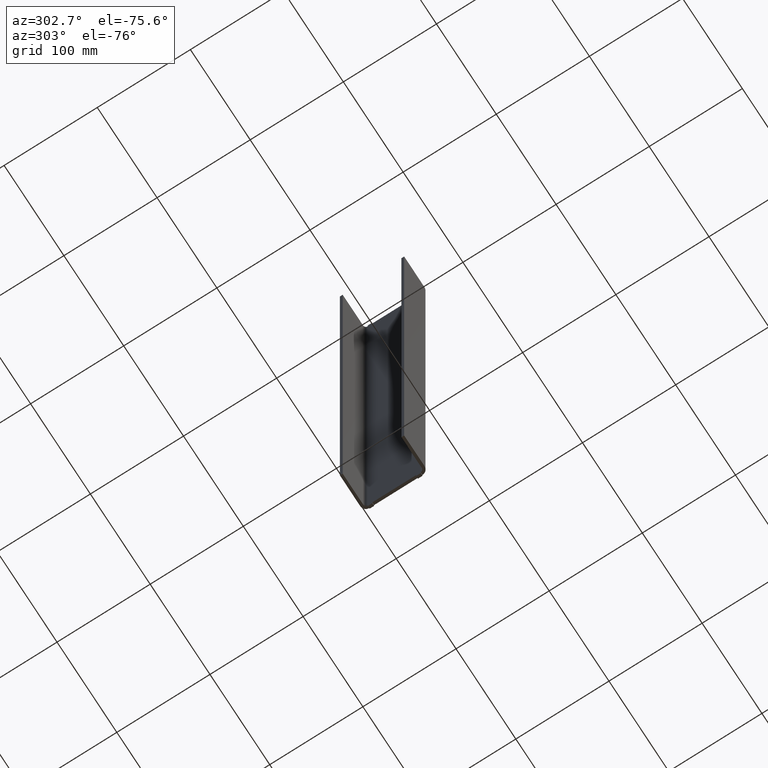
[diagram: clean part render]
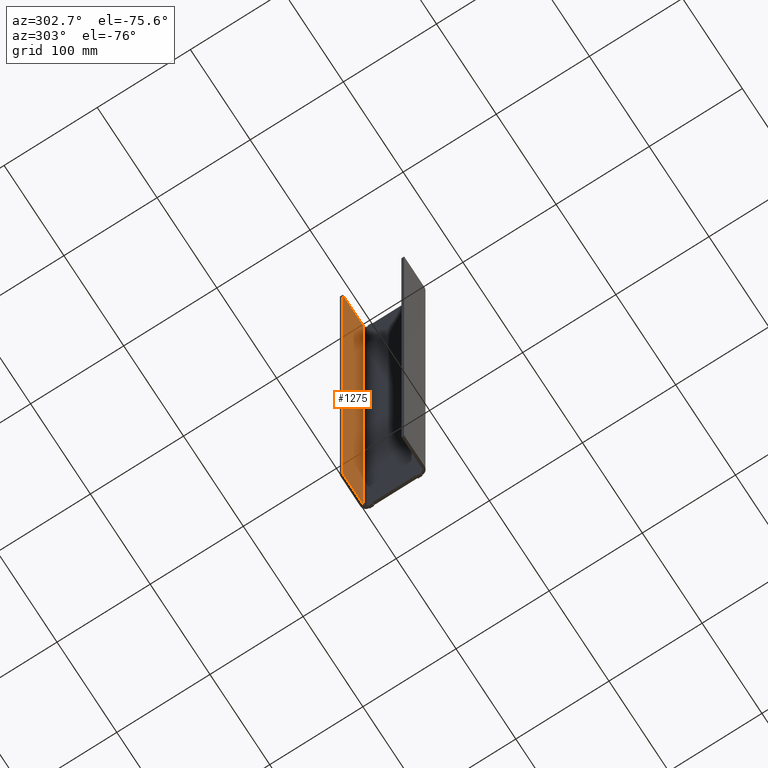
[diagram: same view with one face highlighted and labeled with its STEP entity id]
A machine part, auxiliary view. The second image highlights one B-rep face of the part: STEP entity #1275.
In plain terms, the highlighted planar face has unit normal (0, -1, -0).
Its self-contained STEP definition (entity closure, byte-faithful):
#21 = FACE_OUTER_BOUND ( 'NONE', #885, .T. ) ;
#121 = DIRECTION ( 'NONE',  ( 0.000000000000000000, -1.000000000000000000, -0.000000000000000000 ) ) ;
#183 = DIRECTION ( 'NONE',  ( 1.000000000000000000, -0.000000000000000000, -0.000000000000000000 ) ) ;
#224 = VERTEX_POINT ( 'NONE', #663 ) ;
#238 = EDGE_CURVE ( 'NONE', #592, #700, #761, .T. ) ;
#298 = DIRECTION ( 'NONE',  ( 0.000000000000000000, -0.000000000000000000, 1.000000000000000000 ) ) ;
#323 = ORIENTED_EDGE ( 'NONE', *, *, #238, .F. ) ;
#327 = ORIENTED_EDGE ( 'NONE', *, *, #524, .T. ) ;
#383 = EDGE_CURVE ( 'NONE', #764, #700, #1210, .T. ) ;
#407 = LINE ( 'NONE', #1221, #1299 ) ;
#434 = DIRECTION ( 'NONE',  ( 1.000000000000000000, -0.000000000000000000, -0.000000000000000000 ) ) ;
#463 = ORIENTED_EDGE ( 'NONE', *, *, #383, .T. ) ;
#501 = CARTESIAN_POINT ( 'NONE',  ( -1090.972523324353915, -1100.305262667903662, 104.7558775263622834 ) ) ;
#502 = LINE ( 'NONE', #809, #1253 ) ;
#524 = EDGE_CURVE ( 'NONE', #592, #224, #407, .T. ) ;
#592 = VERTEX_POINT ( 'NONE', #724 ) ;
#613 = CARTESIAN_POINT ( 'NONE',  ( 343.9999999999996589, -1100.305262667903662, -624.9999999999997726 ) ) ;
#663 = CARTESIAN_POINT ( 'NONE',  ( 309.9999999999996021, -1100.305262667903662, -624.9999999999997726 ) ) ;
#700 = VERTEX_POINT ( 'NONE', #1016 ) ;
#706 = EDGE_CURVE ( 'NONE', #224, #764, #502, .T. ) ;
#724 = CARTESIAN_POINT ( 'NONE',  ( 309.9999999999996021, -1100.305262667903662, 25.00000000000046541 ) ) ;
#761 = LINE ( 'NONE', #1167, #1251 ) ;
#764 = VERTEX_POINT ( 'NONE', #613 ) ;
#809 = CARTESIAN_POINT ( 'NONE',  ( -1090.972523324353915, -1100.305262667903662, -624.9999999999997726 ) ) ;
#885 = EDGE_LOOP ( 'NONE', ( #1014, #463, #323, #327 ) ) ;
#911 = DIRECTION ( 'NONE',  ( -0.000000000000000000, 0.000000000000000000, -1.000000000000000000 ) ) ;
#921 = DIRECTION ( 'NONE',  ( -0.000000000000000000, 0.000000000000000000, -1.000000000000000000 ) ) ;
#1014 = ORIENTED_EDGE ( 'NONE', *, *, #706, .T. ) ;
#1016 = CARTESIAN_POINT ( 'NONE',  ( 343.9999999999996589, -1100.305262667903889, 25.00000000000046541 ) ) ;
#1111 = PLANE ( 'NONE',  #1279 ) ;
#1159 = VECTOR ( 'NONE', #298, 1000.000000000000000 ) ;
#1167 = CARTESIAN_POINT ( 'NONE',  ( -1090.972523324353915, -1100.305262667903662, 25.00000000000046541 ) ) ;
#1200 = CARTESIAN_POINT ( 'NONE',  ( 343.9999999999996589, -1100.305262667903662, 104.7558775263622834 ) ) ;
#1210 = LINE ( 'NONE', #1200, #1159 ) ;
#1221 = CARTESIAN_POINT ( 'NONE',  ( 309.9999999999996021, -1100.305262667903662, 104.7558775263622834 ) ) ;
#1251 = VECTOR ( 'NONE', #434, 1000.000000000000000 ) ;
#1253 = VECTOR ( 'NONE', #183, 1000.000000000000000 ) ;
#1275 = ADVANCED_FACE ( 'NONE', ( #21 ), #1111, .T. ) ;
#1279 = AXIS2_PLACEMENT_3D ( 'NONE', #501, #121, #911 ) ;
#1299 = VECTOR ( 'NONE', #921, 1000.000000000000000 ) ;